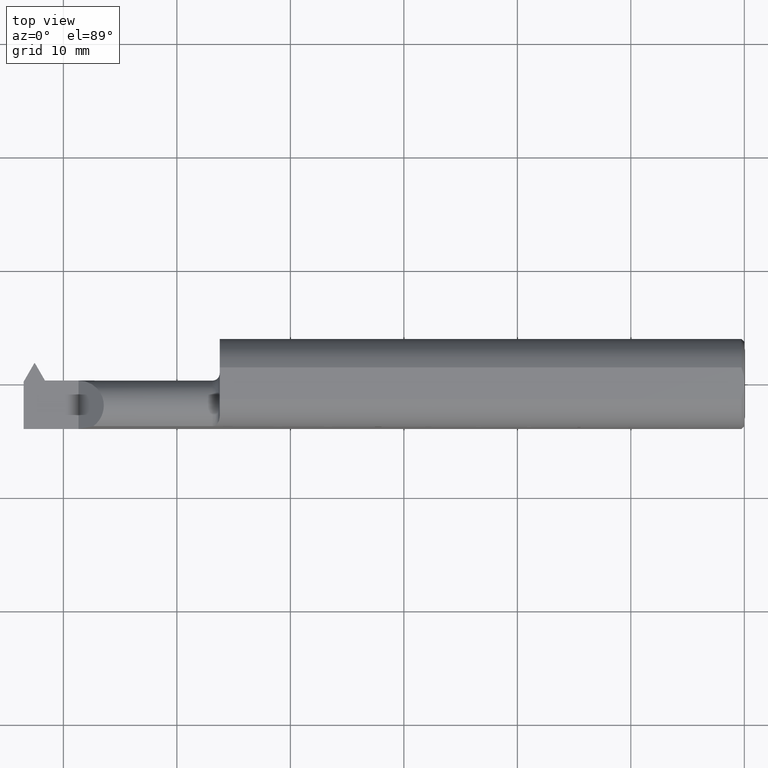
[diagram: clean part render]
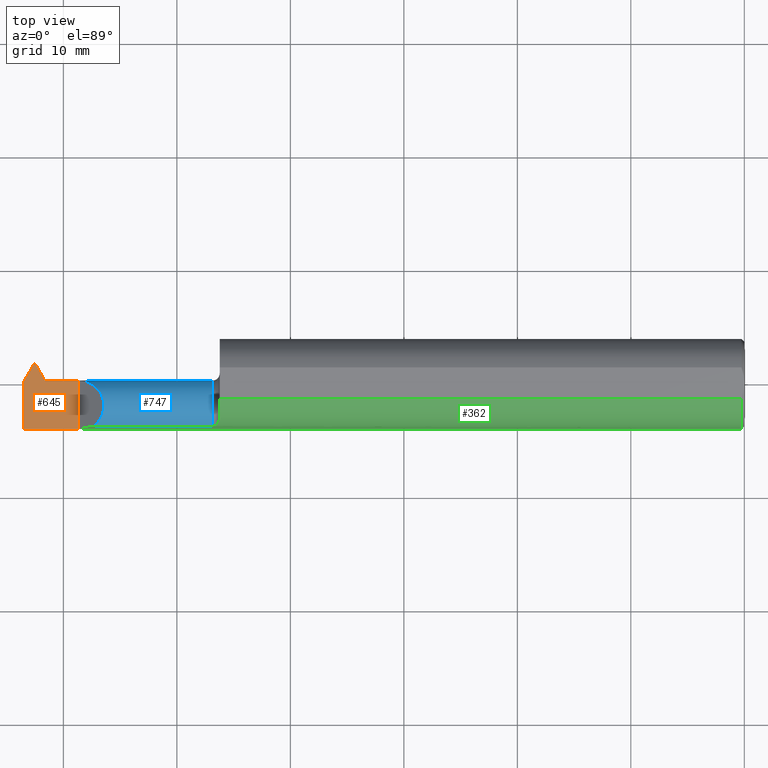
[diagram: same view with three faces highlighted in distinct colors, each labeled with its STEP entity id]
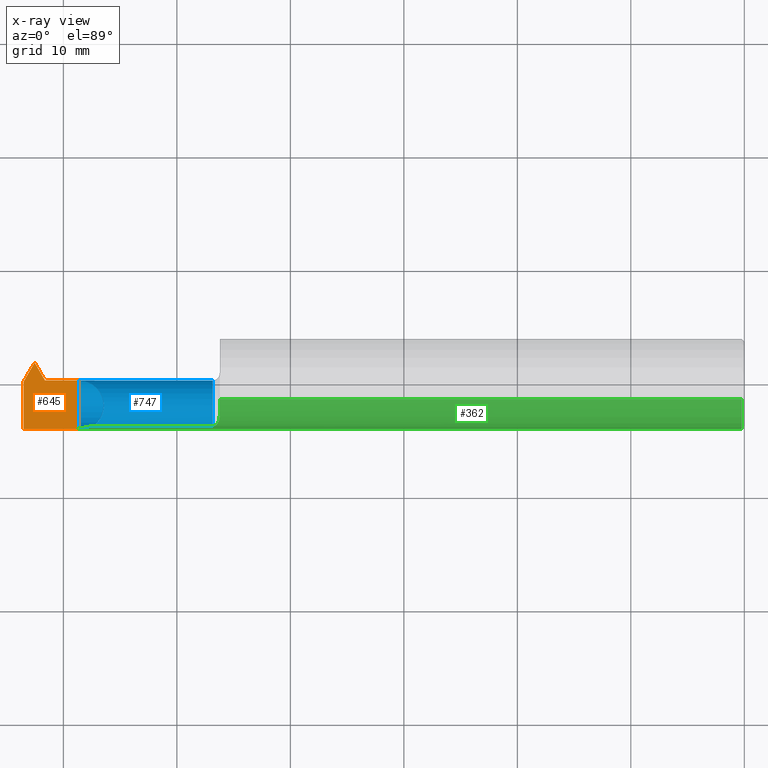
[diagram: x-ray of the same camera — body ghosted, the three highlighted faces saturated]
A machine part, top view with three faces highlighted in distinct colors.
The next image is the same camera in x-ray (body ghosted, the three faces saturated) — at least one of them is partly hidden behind the body in this view.
Their STEP definitions:

[orange] entity #645 — the highlighted planar face has unit normal (-0, 0, -1).
#10 = ORIENTED_EDGE ( 'NONE', *, *, #268, .F. ) ;
#29 = CARTESIAN_POINT ( 'NONE',  ( -2.500000000000000000, -0.1561000000000000720, 8.875653457662611807E-19 ) ) ;
#35 = VECTOR ( 'NONE', #236, 39.37007874015748143 ) ;
#42 = LINE ( 'NONE', #178, #210 ) ;
#115 = EDGE_LOOP ( 'NONE', ( #202, #169, #320, #196, #248, #433, #758, #10 ) ) ;
#127 = DIRECTION ( 'NONE',  ( 0.5000000000000074385, -0.8660254037844342667, 0.000000000000000000 ) ) ;
#140 = DIRECTION ( 'NONE',  ( -1.000000000000000000, 0.000000000000000000, 4.671396556664535003E-18 ) ) ;
#169 = ORIENTED_EDGE ( 'NONE', *, *, #179, .F. ) ;
#178 = CARTESIAN_POINT ( 'NONE',  ( -1.878571113266080284, 1.084593537935991225, 0.000000000000000000 ) ) ;
#179 = EDGE_CURVE ( 'NONE', #437, #206, #42, .T. ) ;
#181 = EDGE_CURVE ( 'NONE', #638, #500, #856, .T. ) ;
#187 = VECTOR ( 'NONE', #827, 39.37007874015748143 ) ;
#196 = ORIENTED_EDGE ( 'NONE', *, *, #582, .T. ) ;
#202 = ORIENTED_EDGE ( 'NONE', *, *, #722, .F. ) ;
#206 = VERTEX_POINT ( 'NONE', #525 ) ;
#210 = VECTOR ( 'NONE', #601, 39.37007874015748143 ) ;
#236 = DIRECTION ( 'NONE',  ( 1.000000000000000000, 1.301231752219315598E-17, 0.000000000000000000 ) ) ;
#240 = VECTOR ( 'NONE', #127, 39.37007874015748854 ) ;
#247 = DIRECTION ( 'NONE',  ( 1.000000000000000000, 2.091571120149166951E-14, 0.000000000000000000 ) ) ;
#248 = ORIENTED_EDGE ( 'NONE', *, *, #181, .T. ) ;
#268 = EDGE_CURVE ( 'NONE', #689, #400, #312, .T. ) ;
#272 = CARTESIAN_POINT ( 'NONE',  ( -2.500000000000000000, -0.1561000000000000720, 8.875653457662609881E-19 ) ) ;
#281 = VECTOR ( 'NONE', #308, 39.37007874015748143 ) ;
#283 = CARTESIAN_POINT ( 'NONE',  ( -2.421108983848621943, 0.01189999999999981004, 0.000000000000000000 ) ) ;
#301 = AXIS2_PLACEMENT_3D ( 'NONE', #682, #551, #140 ) ;
#308 = DIRECTION ( 'NONE',  ( -0.000000000000000000, 1.000000000000000000, -0.000000000000000000 ) ) ;
#312 = LINE ( 'NONE', #800, #240 ) ;
#320 = ORIENTED_EDGE ( 'NONE', *, *, #381, .T. ) ;
#327 = VECTOR ( 'NONE', #502, 39.37007874015748143 ) ;
#381 = EDGE_CURVE ( 'NONE', #437, #465, #825, .T. ) ;
#384 = LINE ( 'NONE', #533, #413 ) ;
#400 = VERTEX_POINT ( 'NONE', #407 ) ;
#404 = VECTOR ( 'NONE', #818, 39.37007874015748143 ) ;
#405 = PLANE ( 'NONE',  #301 ) ;
#407 = CARTESIAN_POINT ( 'NONE',  ( -2.426108983848622280, 0.01189999999999981004, 0.000000000000000000 ) ) ;
#413 = VECTOR ( 'NONE', #247, 39.37007874015748143 ) ;
#433 = ORIENTED_EDGE ( 'NONE', *, *, #496, .F. ) ;
#437 = VERTEX_POINT ( 'NONE', #836 ) ;
#444 = CARTESIAN_POINT ( 'NONE',  ( -2.310000000000000053, 0.01189999999999987769, 0.000000000000000000 ) ) ;
#465 = VERTEX_POINT ( 'NONE', #29 ) ;
#496 = EDGE_CURVE ( 'NONE', #667, #500, #851, .T. ) ;
#500 = VERTEX_POINT ( 'NONE', #444 ) ;
#502 = DIRECTION ( 'NONE',  ( 1.000000000000000000, 1.301231752219315598E-17, 0.000000000000000000 ) ) ;
#525 = CARTESIAN_POINT ( 'NONE',  ( -2.463250000000000384, 0.07189999999999988067, 0.000000000000000000 ) ) ;
#533 = CARTESIAN_POINT ( 'NONE',  ( -2.488969632988080628E-16, 0.01190000000005054549, 0.000000000000000000 ) ) ;
#551 = DIRECTION ( 'NONE',  ( -4.671396556664535003E-18, 0.000000000000000000, -1.000000000000000000 ) ) ;
#582 = EDGE_CURVE ( 'NONE', #465, #638, #817, .T. ) ;
#583 = CARTESIAN_POINT ( 'NONE',  ( -2.500000000000000000, 0.01189999999999992973, 8.875653457662611807E-19 ) ) ;
#601 = DIRECTION ( 'NONE',  ( 0.4999999999999878986, 0.8660254037844455910, 0.000000000000000000 ) ) ;
#616 = CARTESIAN_POINT ( 'NONE',  ( -2.500000000000000000, -6.123233995736767268E-17, 8.875653457662611807E-19 ) ) ;
#638 = VERTEX_POINT ( 'NONE', #748 ) ;
#645 = ADVANCED_FACE ( 'NONE', ( #744 ), #405, .F. ) ;
#649 = LINE ( 'NONE', #832, #327 ) ;
#667 = VERTEX_POINT ( 'NONE', #283 ) ;
#668 = CARTESIAN_POINT ( 'NONE',  ( -2.310000000000000053, -0.2500000000000000000, 0.000000000000000000 ) ) ;
#682 = CARTESIAN_POINT ( 'NONE',  ( -2.500000000000000000, -0.2500000000000000000, 8.875653457662611807E-19 ) ) ;
#689 = VERTEX_POINT ( 'NONE', #702 ) ;
#702 = CARTESIAN_POINT ( 'NONE',  ( -2.460750000000000437, 0.07189999999999995006, 0.000000000000000000 ) ) ;
#722 = EDGE_CURVE ( 'NONE', #206, #689, #649, .T. ) ;
#744 = FACE_OUTER_BOUND ( 'NONE', #115, .T. ) ;
#748 = CARTESIAN_POINT ( 'NONE',  ( -2.310000000000000053, -0.1561000000000000998, 0.000000000000000000 ) ) ;
#758 = ORIENTED_EDGE ( 'NONE', *, *, #824, .F. ) ;
#800 = CARTESIAN_POINT ( 'NONE',  ( -1.814428886733931101, -1.047561006181289001, 0.000000000000000000 ) ) ;
#817 = LINE ( 'NONE', #272, #187 ) ;
#818 = DIRECTION ( 'NONE',  ( 1.224646799147352961E-16, -1.000000000000000000, -5.720810840667189241E-34 ) ) ;
#824 = EDGE_CURVE ( 'NONE', #400, #667, #384, .T. ) ;
#825 = LINE ( 'NONE', #616, #404 ) ;
#827 = DIRECTION ( 'NONE',  ( 1.000000000000000000, 1.224646799147352961E-16, -0.000000000000000000 ) ) ;
#832 = CARTESIAN_POINT ( 'NONE',  ( -2.500000000000000000, 0.07189999999999992231, 8.875653457662611807E-19 ) ) ;
#836 = CARTESIAN_POINT ( 'NONE',  ( -2.500000000000000000, 0.008247132821841942490, 0.000000000000000000 ) ) ;
#851 = LINE ( 'NONE', #583, #35 ) ;
#856 = LINE ( 'NONE', #668, #281 ) ;

[blue] entity #747 — the highlighted cylindrical surface (edge-blend (fillet) strip) has radius 2.2352 mm, axis along (-1, -0, -0).
#9 = CARTESIAN_POINT ( 'NONE',  ( -2.310000000000000053, 0.01189999999999987769, 0.000000000000000000 ) ) ;
#13 = CARTESIAN_POINT ( 'NONE',  ( -2.206585760359398130, 0.01189999999999993840, 0.1034142396406013825 ) ) ;
#15 = CARTESIAN_POINT ( 'NONE',  ( -2.421108983848621943, -0.04738773832811973147, -0.08318416934540759367 ) ) ;
#17 = CARTESIAN_POINT ( 'NONE',  ( -2.413632881043807465, 0.007084169345407169416, -0.02871226167188161912 ) ) ;
#31 = ORIENTED_EDGE ( 'NONE', *, *, #58, .T. ) ;
#35 = VECTOR ( 'NONE', #236, 39.37007874015748143 ) ;
#53 = EDGE_LOOP ( 'NONE', ( #260, #217, #31, #293, #361, #71, #287, #270, #139, #380, #392, #341 ) ) ;
#57 = VERTEX_POINT ( 'NONE', #17 ) ;
#58 = EDGE_CURVE ( 'NONE', #348, #57, #194, .T. ) ;
#59 = DIRECTION ( 'NONE',  ( -1.000000000000000000, -1.301231752219315598E-17, -0.000000000000000000 ) ) ;
#71 = ORIENTED_EDGE ( 'NONE', *, *, #496, .T. ) ;
#73 = DIRECTION ( 'NONE',  ( 0.000000000000000000, -1.000000000000000000, 0.000000000000000000 ) ) ;
#92 = CARTESIAN_POINT ( 'NONE',  ( -2.421108983848621943, 0.01189999999999981004, 0.000000000000000000 ) ) ;
#104 = CARTESIAN_POINT ( 'NONE',  ( -2.413632881043807465, -0.07610000000000008424, 0.000000000000000000 ) ) ;
#113 = LINE ( 'NONE', #852, #785 ) ;
#123 = DIRECTION ( 'NONE',  ( -1.000000000000000000, -1.301231752219315598E-17, -0.000000000000000000 ) ) ;
#130 = CARTESIAN_POINT ( 'NONE',  ( -2.500000000000000000, -0.04738773832811999515, -0.08318416934540782959 ) ) ;
#134 = CARTESIAN_POINT ( 'NONE',  ( -2.413632881043807465, -0.04738773832811999515, -0.08318416934540782959 ) ) ;
#139 = ORIENTED_EDGE ( 'NONE', *, *, #864, .T. ) ;
#151 = LINE ( 'NONE', #197, #844 ) ;
#171 = VERTEX_POINT ( 'NONE', #315 ) ;
#175 = CARTESIAN_POINT ( 'NONE',  ( -2.500000000000000000, -0.07610000000000008424, 0.000000000000000000 ) ) ;
#188 = CARTESIAN_POINT ( 'NONE',  ( -1.845000000000000195, -0.07610000000000007037, 0.000000000000000000 ) ) ;
#194 = CIRCLE ( 'NONE', #425, 0.08800000000000000877 ) ;
#197 = CARTESIAN_POINT ( 'NONE',  ( -2.399999999999999911, -0.07610000000000007037, -0.08799999999999992550 ) ) ;
#200 = VERTEX_POINT ( 'NONE', #659 ) ;
#201 = CARTESIAN_POINT ( 'NONE',  ( -2.421108983848621943, -0.07610000000000008424, 0.000000000000000000 ) ) ;
#217 = ORIENTED_EDGE ( 'NONE', *, *, #309, .T. ) ;
#230 = CARTESIAN_POINT ( 'NONE',  ( -2.500000000000000000, -0.1472695137976348934, -0.05175809410911740016 ) ) ;
#232 = EDGE_CURVE ( 'NONE', #57, #359, #113, .T. ) ;
#236 = DIRECTION ( 'NONE',  ( 1.000000000000000000, 1.301231752219315598E-17, 0.000000000000000000 ) ) ;
#255 = DIRECTION ( 'NONE',  ( 0.000000000000000000, -1.000000000000000000, 0.000000000000000000 ) ) ;
#260 = ORIENTED_EDGE ( 'NONE', *, *, #337, .F. ) ;
#270 = ORIENTED_EDGE ( 'NONE', *, *, #867, .F. ) ;
#271 =( BOUNDED_CURVE ( )  B_SPLINE_CURVE ( 3, ( #9, #13, #745, #549 ),
 .UNSPECIFIED., .F., .T. ) 
 B_SPLINE_CURVE_WITH_KNOTS ( ( 4, 4 ),
 ( 1.570796326794896558, 4.083606959790376578 ),
 .UNSPECIFIED. ) 
 CURVE ( )  GEOMETRIC_REPRESENTATION_ITEM ( )  RATIONAL_B_SPLINE_CURVE ( ( 1.000000000000000000, 0.5394915924057046563, 0.5394915924057046563, 1.000000000000000000 ) ) 
 REPRESENTATION_ITEM ( '' )  );
#279 = EDGE_CURVE ( 'NONE', #469, #603, #743, .T. ) ;
#283 = CARTESIAN_POINT ( 'NONE',  ( -2.421108983848621943, 0.01189999999999981004, 0.000000000000000000 ) ) ;
#286 = CARTESIAN_POINT ( 'NONE',  ( -2.417151050136866708, 0.01027984334874565420, -0.01945386571184650609 ) ) ;
#287 = ORIENTED_EDGE ( 'NONE', *, *, #347, .T. ) ;
#293 = ORIENTED_EDGE ( 'NONE', *, *, #232, .T. ) ;
#305 = DIRECTION ( 'NONE',  ( 1.000000000000000000, -0.000000000000000000, 0.000000000000000000 ) ) ;
#309 = EDGE_CURVE ( 'NONE', #575, #348, #753, .T. ) ;
#315 = CARTESIAN_POINT ( 'NONE',  ( -1.845000000000000195, -0.1472695137976347268, -0.05175809410911797609 ) ) ;
#328 = CARTESIAN_POINT ( 'NONE',  ( -2.415267408189822440, 0.007084169345407244009, -0.02871226167188149769 ) ) ;
#336 = CARTESIAN_POINT ( 'NONE',  ( -2.258241905890881807, -0.1472695137976346713, 0.05175809410911782343 ) ) ;
#337 = EDGE_CURVE ( 'NONE', #575, #402, #449, .T. ) ;
#341 = ORIENTED_EDGE ( 'NONE', *, *, #632, .F. ) ;
#347 = EDGE_CURVE ( 'NONE', #500, #356, #271, .T. ) ;
#348 = VERTEX_POINT ( 'NONE', #134 ) ;
#355 = FACE_OUTER_BOUND ( 'NONE', #53, .T. ) ;
#356 = VERTEX_POINT ( 'NONE', #336 ) ;
#359 = VERTEX_POINT ( 'NONE', #328 ) ;
#361 = ORIENTED_EDGE ( 'NONE', *, *, #663, .F. ) ;
#380 = ORIENTED_EDGE ( 'NONE', *, *, #471, .F. ) ;
#386 = CARTESIAN_POINT ( 'NONE',  ( -2.133054491924311069, -0.1472695137976346713, -0.05175809410911787894 ) ) ;
#392 = ORIENTED_EDGE ( 'NONE', *, *, #279, .T. ) ;
#402 = VERTEX_POINT ( 'NONE', #486 ) ;
#417 = VECTOR ( 'NONE', #658, 39.37007874015748143 ) ;
#425 = AXIS2_PLACEMENT_3D ( 'NONE', #104, #305, #567 ) ;
#438 = CARTESIAN_POINT ( 'NONE',  ( -2.415267408189822440, 0.007084169345407244009, -0.02871226167188149769 ) ) ;
#444 = CARTESIAN_POINT ( 'NONE',  ( -2.310000000000000053, 0.01189999999999987769, 0.000000000000000000 ) ) ;
#449 = CIRCLE ( 'NONE', #497, 0.08799999999999988387 ) ;
#469 = VERTEX_POINT ( 'NONE', #230 ) ;
#471 = EDGE_CURVE ( 'NONE', #469, #171, #704, .T. ) ;
#484 = DIRECTION ( 'NONE',  ( -1.000000000000000000, -1.553500558300393113E-17, -0.000000000000000000 ) ) ;
#486 = CARTESIAN_POINT ( 'NONE',  ( -2.421108983848621943, -0.07610000000000007037, -0.08799999999999992550 ) ) ;
#496 = EDGE_CURVE ( 'NONE', #667, #500, #851, .T. ) ;
#497 = AXIS2_PLACEMENT_3D ( 'NONE', #201, #688, #73 ) ;
#499 = CARTESIAN_POINT ( 'NONE',  ( -2.500000000000000000, -0.07610000000000008424, 0.000000000000000000 ) ) ;
#500 = VERTEX_POINT ( 'NONE', #444 ) ;
#527 =( BOUNDED_CURVE ( )  B_SPLINE_CURVE ( 3, ( #92, #580, #286, #438 ),
 .UNSPECIFIED., .F., .T. ) 
 B_SPLINE_CURVE_WITH_KNOTS ( ( 4, 4 ),
 ( 1.570796326794896780, 1.903157296839100399 ),
 .UNSPECIFIED. ) 
 CURVE ( )  GEOMETRIC_REPRESENTATION_ITEM ( )  RATIONAL_B_SPLINE_CURVE ( ( 1.000000000000000000, 0.9908158471105027454, 0.9908158471105027454, 1.000000000000000000 ) ) 
 REPRESENTATION_ITEM ( '' )  );
#549 = CARTESIAN_POINT ( 'NONE',  ( -2.258241905890881807, -0.1472695137976346713, 0.05175809410911782343 ) ) ;
#567 = DIRECTION ( 'NONE',  ( 0.000000000000000000, -8.731048275205386309E-16, 1.000000000000000000 ) ) ;
#575 = VERTEX_POINT ( 'NONE', #15 ) ;
#580 = CARTESIAN_POINT ( 'NONE',  ( -2.419116291096571558, 0.01189999999999994187, -0.009794397791003101386 ) ) ;
#583 = CARTESIAN_POINT ( 'NONE',  ( -2.500000000000000000, 0.01189999999999992973, 8.875653457662611807E-19 ) ) ;
#598 = LINE ( 'NONE', #865, #677 ) ;
#603 = VERTEX_POINT ( 'NONE', #690 ) ;
#604 = DIRECTION ( 'NONE',  ( 1.000000000000000000, 1.553500558300393113E-17, -0.000000000000000000 ) ) ;
#632 = EDGE_CURVE ( 'NONE', #402, #603, #151, .T. ) ;
#658 = DIRECTION ( 'NONE',  ( 1.000000000000000000, 1.301231752219315598E-17, 0.000000000000000000 ) ) ;
#659 = CARTESIAN_POINT ( 'NONE',  ( -1.845000000000000195, -0.1472695137976347546, 0.05175809410911794833 ) ) ;
#663 = EDGE_CURVE ( 'NONE', #667, #359, #527, .T. ) ;
#667 = VERTEX_POINT ( 'NONE', #283 ) ;
#677 = VECTOR ( 'NONE', #123, 39.37007874015748143 ) ;
#688 = DIRECTION ( 'NONE',  ( -1.000000000000000000, -1.301231752219315598E-17, -0.000000000000000000 ) ) ;
#690 = CARTESIAN_POINT ( 'NONE',  ( -2.500000000000000000, -0.07610000000000007037, -0.08799999999999992550 ) ) ;
#704 = LINE ( 'NONE', #386, #417 ) ;
#706 = DIRECTION ( 'NONE',  ( 0.000000000000000000, -1.000000000000000000, 0.000000000000000000 ) ) ;
#716 = DIRECTION ( 'NONE',  ( 0.000000000000000000, -1.000000000000000000, 0.000000000000000000 ) ) ;
#729 = DIRECTION ( 'NONE',  ( -1.000000000000000000, -1.301231752219315598E-17, -0.000000000000000000 ) ) ;
#743 = CIRCLE ( 'NONE', #792, 0.08799999999999992550 ) ;
#745 = CARTESIAN_POINT ( 'NONE',  ( -2.174606210947997997, -0.08644537803012208865, 0.1353937890520004461 ) ) ;
#747 = ADVANCED_FACE ( 'NONE', ( #355 ), #846, .T. ) ;
#753 = LINE ( 'NONE', #130, #759 ) ;
#755 = AXIS2_PLACEMENT_3D ( 'NONE', #499, #764, #706 ) ;
#756 = AXIS2_PLACEMENT_3D ( 'NONE', #188, #729, #716 ) ;
#759 = VECTOR ( 'NONE', #821, 39.37007874015748143 ) ;
#764 = DIRECTION ( 'NONE',  ( -1.000000000000000000, -1.301231752219315598E-17, -0.000000000000000000 ) ) ;
#785 = VECTOR ( 'NONE', #59, 39.37007874015748143 ) ;
#792 = AXIS2_PLACEMENT_3D ( 'NONE', #175, #604, #255 ) ;
#801 = CIRCLE ( 'NONE', #756, 0.08800000000000013367 ) ;
#821 = DIRECTION ( 'NONE',  ( 1.000000000000000000, 1.301231752219315598E-17, 0.000000000000000000 ) ) ;
#844 = VECTOR ( 'NONE', #484, 39.37007874015748143 ) ;
#846 = CYLINDRICAL_SURFACE ( 'NONE', #755, 0.08800000000000002265 ) ;
#851 = LINE ( 'NONE', #583, #35 ) ;
#852 = CARTESIAN_POINT ( 'NONE',  ( -2.500000000000000000, 0.007084169345407237070, -0.02871226167188158443 ) ) ;
#864 = EDGE_CURVE ( 'NONE', #200, #171, #801, .T. ) ;
#865 = CARTESIAN_POINT ( 'NONE',  ( -2.133054491924311069, -0.1472695137976346713, 0.05175809410911787894 ) ) ;
#867 = EDGE_CURVE ( 'NONE', #200, #356, #598, .T. ) ;

[green] entity #362 — the highlighted cylindrical surface (partial cylindrical patch) has radius 3.9649 mm, axis along (1, 0, -0).
#37 = DIRECTION ( 'NONE',  ( 1.000000000000000000, 1.224646799147352961E-16, -0.000000000000000000 ) ) ;
#44 = CARTESIAN_POINT ( 'NONE',  ( -1.841954860809190020, -0.1470959542221376148, 0.05225537509141427867 ) ) ;
#61 = ORIENTED_EDGE ( 'NONE', *, *, #488, .T. ) ;
#68 = EDGE_CURVE ( 'NONE', #650, #296, #222, .T. ) ;
#67 = AXIS2_PLACEMENT_3D ( 'NONE', #736, #274, #814 ) ;
#79 = ORIENTED_EDGE ( 'NONE', *, *, #711, .F. ) ;
#88 = CARTESIAN_POINT ( 'NONE',  ( -2.310000000000000053, -0.1561000000000000998, 0.000000000000000000 ) ) ;
#97 = ORIENTED_EDGE ( 'NONE', *, *, #68, .F. ) ;
#109 = AXIS2_PLACEMENT_3D ( 'NONE', #578, #781, #453 ) ;
#117 = CARTESIAN_POINT ( 'NONE',  ( -1.820000000000000284, -0.1142537450715741948, 0.1063639588254092216 ) ) ;
#123 = DIRECTION ( 'NONE',  ( -1.000000000000000000, -1.301231752219315598E-17, -0.000000000000000000 ) ) ;
#137 = B_SPLINE_CURVE_WITH_KNOTS ( 'NONE', 3,
 ( #117, #174, #377, #242, #587, #847, #505, #289, #654, #572, #170, #44, #837, #647 ),
 .UNSPECIFIED., .F., .F.,
 ( 4, 2, 2, 2, 2, 2, 4 ),
 ( 0.0002357998142103234817, 0.0006937643599539127393, 0.001151728905697502105, 0.001609693451441091688, 0.001838675724312891033, 0.001953166860748790489, 0.002067657997184689945 ),
 .UNSPECIFIED. ) ;
#147 = ORIENTED_EDGE ( 'NONE', *, *, #867, .T. ) ;
#155 = CARTESIAN_POINT ( 'NONE',  ( -2.274912119307999969, -0.1531282856005203030, 0.03508788069200007714 ) ) ;
#162 = DIRECTION ( 'NONE',  ( -1.230512889522860364E-16, 1.000000000000000000, 8.881784197001252323E-16 ) ) ;
#164 = ORIENTED_EDGE ( 'NONE', *, *, #778, .T. ) ;
#170 = CARTESIAN_POINT ( 'NONE',  ( -1.839325941459024838, -0.1465552322353794734, 0.05375321273095784447 ) ) ;
#174 = CARTESIAN_POINT ( 'NONE',  ( -1.819999999999967644, -0.1183584908119261897, 0.1019547343237290349 ) ) ;
#192 = ORIENTED_EDGE ( 'NONE', *, *, #466, .T. ) ;
#200 = VERTEX_POINT ( 'NONE', #659 ) ;
#222 = LINE ( 'NONE', #648, #429 ) ;
#242 = CARTESIAN_POINT ( 'NONE',  ( -1.822189633566586364, -0.1292798516107536988, 0.08769141204669660128 ) ) ;
#262 = CYLINDRICAL_SURFACE ( 'NONE', #67, 0.1561000000000000165 ) ;
#264 = CARTESIAN_POINT ( 'NONE',  ( -1.820000000000000284, -0.05497272050753903433, 0.1461000000000000076 ) ) ;
#274 = DIRECTION ( 'NONE',  ( 1.000000000000000000, 1.224646799147352961E-16, -0.000000000000000000 ) ) ;
#289 = CARTESIAN_POINT ( 'NONE',  ( -1.833413277050720991, -0.1440082460785117036, 0.06029952348881725821 ) ) ;
#296 = VERTEX_POINT ( 'NONE', #409 ) ;
#336 = CARTESIAN_POINT ( 'NONE',  ( -2.258241905890881807, -0.1472695137976346713, 0.05175809410911782343 ) ) ;
#356 = VERTEX_POINT ( 'NONE', #336 ) ;
#362 = ADVANCED_FACE ( 'NONE', ( #609 ), #262, .T. ) ;
#373 = CARTESIAN_POINT ( 'NONE',  ( -2.258241905890881807, -0.1472695137976346713, 0.05175809410911782343 ) ) ;
#375 = CIRCLE ( 'NONE', #109, 0.1561000000000000165 ) ;
#377 = CARTESIAN_POINT ( 'NONE',  ( -1.820448686022200002, -0.1221823836830937121, 0.09733719174477606373 ) ) ;
#409 = CARTESIAN_POINT ( 'NONE',  ( -0.009999999999999073866, -0.05497272050753881228, 0.1461000000000000076 ) ) ;
#429 = VECTOR ( 'NONE', #584, 39.37007874015748143 ) ;
#443 = CARTESIAN_POINT ( 'NONE',  ( -1.820000000000000284, -0.1142537450715741948, 0.1063639588254092216 ) ) ;
#453 = DIRECTION ( 'NONE',  ( 0.000000000000000000, -1.000000000000000000, -3.552713678800500929E-15 ) ) ;
#466 = EDGE_CURVE ( 'NONE', #650, #657, #375, .T. ) ;
#488 = EDGE_CURVE ( 'NONE', #657, #200, #137, .T. ) ;
#505 = CARTESIAN_POINT ( 'NONE',  ( -1.829024368971149173, -0.1407725817217403697, 0.06766890069852195266 ) ) ;
#509 = CARTESIAN_POINT ( 'NONE',  ( -0.009999999999999073866, 2.437047130303233649E-16, 0.000000000000000000 ) ) ;
#511 = LINE ( 'NONE', #630, #577 ) ;
#534 = VERTEX_POINT ( 'NONE', #855 ) ;
#542 = EDGE_CURVE ( 'NONE', #534, #296, #608, .T. ) ;
#572 = CARTESIAN_POINT ( 'NONE',  ( -1.838181177459758509, -0.1461969813683945407, 0.05472577389936172237 ) ) ;
#577 = VECTOR ( 'NONE', #37, 39.37007874015748143 ) ;
#578 = CARTESIAN_POINT ( 'NONE',  ( -1.820000000000000284, 2.204364238465230892E-17, 0.000000000000000000 ) ) ;
#584 = DIRECTION ( 'NONE',  ( 1.000000000000000000, 1.224646799147352961E-16, -0.000000000000000000 ) ) ;
#587 = CARTESIAN_POINT ( 'NONE',  ( -1.823484131199146985, -0.1325297027135329542, 0.08268119770262055690 ) ) ;
#598 = LINE ( 'NONE', #865, #677 ) ;
#608 = CIRCLE ( 'NONE', #757, 0.1561000000000000165 ) ;
#609 = FACE_OUTER_BOUND ( 'NONE', #857, .T. ) ;
#623 =( BOUNDED_CURVE ( )  B_SPLINE_CURVE ( 3, ( #88, #835, #155, #373 ),
 .UNSPECIFIED., .F., .T. ) 
 B_SPLINE_CURVE_WITH_KNOTS ( ( 4, 4 ),
 ( 4.712388980384689674, 5.050356325447890704 ),
 .UNSPECIFIED. ) 
 CURVE ( )  GEOMETRIC_REPRESENTATION_ITEM ( )  RATIONAL_B_SPLINE_CURVE ( ( 1.000000000000000000, 0.9905041350217796969, 0.9905041350217796969, 1.000000000000000000 ) ) 
 REPRESENTATION_ITEM ( '' )  );
#630 = CARTESIAN_POINT ( 'NONE',  ( -2.500000000000000000, -0.1561000000000000720, 1.911673653469018376E-17 ) ) ;
#638 = VERTEX_POINT ( 'NONE', #748 ) ;
#647 = CARTESIAN_POINT ( 'NONE',  ( -1.845000000000000195, -0.1472695137976347546, 0.05175809410911794833 ) ) ;
#648 = CARTESIAN_POINT ( 'NONE',  ( -2.500000000000000000, -0.05497272050753911760, 0.1461000000000000076 ) ) ;
#650 = VERTEX_POINT ( 'NONE', #264 ) ;
#654 = CARTESIAN_POINT ( 'NONE',  ( -1.835083227087313196, -0.1449949082926791089, 0.05786810286899492922 ) ) ;
#657 = VERTEX_POINT ( 'NONE', #443 ) ;
#659 = CARTESIAN_POINT ( 'NONE',  ( -1.845000000000000195, -0.1472695137976347546, 0.05175809410911794833 ) ) ;
#677 = VECTOR ( 'NONE', #123, 39.37007874015748143 ) ;
#711 = EDGE_CURVE ( 'NONE', #638, #356, #623, .T. ) ;
#736 = CARTESIAN_POINT ( 'NONE',  ( -2.500000000000000000, -6.123233995736767268E-17, 0.000000000000000000 ) ) ;
#748 = CARTESIAN_POINT ( 'NONE',  ( -2.310000000000000053, -0.1561000000000000998, 0.000000000000000000 ) ) ;
#754 = ORIENTED_EDGE ( 'NONE', *, *, #542, .T. ) ;
#757 = AXIS2_PLACEMENT_3D ( 'NONE', #509, #771, #162 ) ;
#771 = DIRECTION ( 'NONE',  ( -1.000000000000000000, -1.224646799147319927E-16, 0.000000000000000000 ) ) ;
#778 = EDGE_CURVE ( 'NONE', #638, #534, #511, .T. ) ;
#781 = DIRECTION ( 'NONE',  ( 1.000000000000000000, 1.301231752219315598E-17, 0.000000000000000000 ) ) ;
#814 = DIRECTION ( 'NONE',  ( 0.000000000000000000, 1.000000000000000000, 0.000000000000000000 ) ) ;
#835 = CARTESIAN_POINT ( 'NONE',  ( -2.292330217250612812, -0.1561000000000000443, 0.01766978274938703006 ) ) ;
#837 = CARTESIAN_POINT ( 'NONE',  ( -1.843447391068663510, -0.1472695137984707248, 0.05175809410673899713 ) ) ;
#847 = CARTESIAN_POINT ( 'NONE',  ( -1.826922816836092256, -0.1382559065226509898, 0.07270217924159666500 ) ) ;
#855 = CARTESIAN_POINT ( 'NONE',  ( -0.009999999999999054784, -0.1560999999999997667, 1.911673653469018376E-17 ) ) ;
#857 = EDGE_LOOP ( 'NONE', ( #79, #164, #754, #97, #192, #61, #147 ) ) ;
#865 = CARTESIAN_POINT ( 'NONE',  ( -2.133054491924311069, -0.1472695137976346713, 0.05175809410911787894 ) ) ;
#867 = EDGE_CURVE ( 'NONE', #200, #356, #598, .T. ) ;